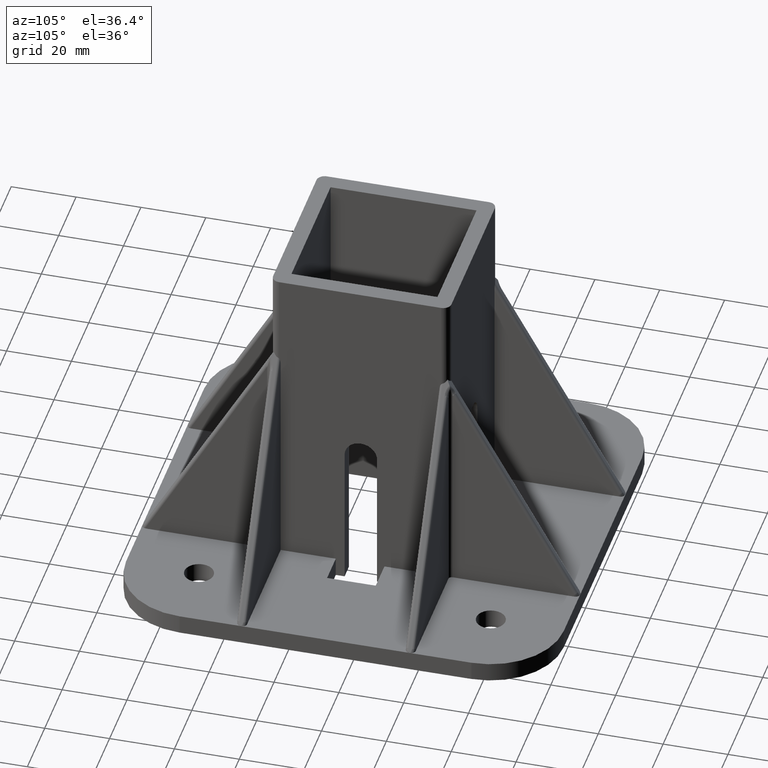
[diagram: clean part render]
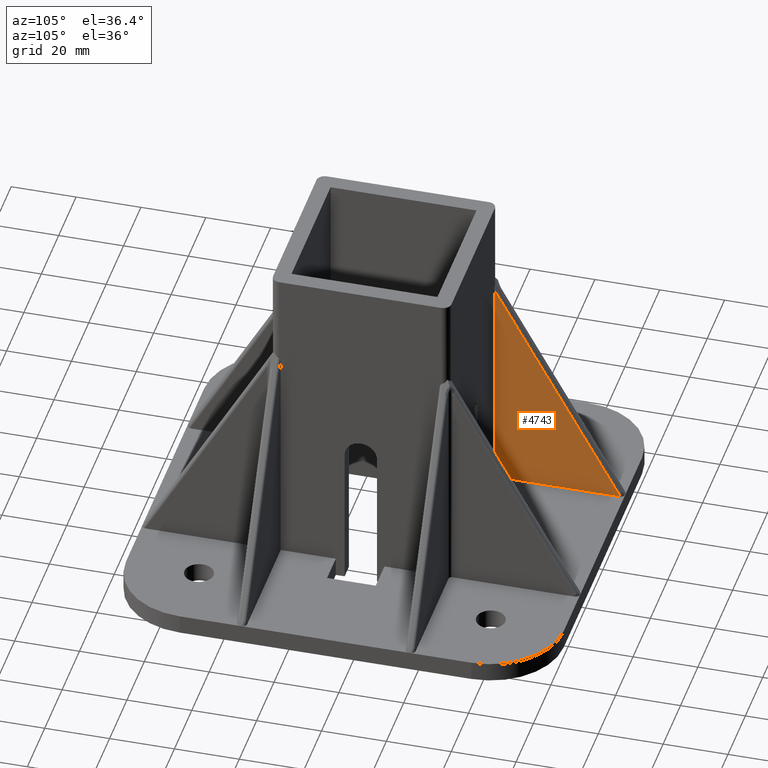
[diagram: same view with one face highlighted and labeled with its STEP entity id]
A machine part, auxiliary view. The second image highlights one B-rep face of the part: STEP entity #4743.
In plain terms, the highlighted planar face has unit normal (1, 0, 0).
Its self-contained STEP definition (entity closure, byte-faithful):
#3836=CARTESIAN_POINT('',(-24.499950999902097,-39.999919999840131,74.962537730874999));
#3837=VERTEX_POINT('',#3836);
#3838=CARTESIAN_POINT('',(-24.499950999902097,-1.499996999993982,6.625174599270139));
#3839=VERTEX_POINT('',#3838);
#3840=CARTESIAN_POINT('',(-24.499950999902097,-39.999919999840131,74.962537730874999));
#3841=DIRECTION('',(0.0,0.490843734993708,-0.871247627151677));
#3842=VECTOR('',#3841,78.436211476427829);
#3843=LINE('',#3840,#3842);
#3844=EDGE_CURVE('',#3837,#3839,#3843,.T.);
#3920=CARTESIAN_POINT('',(-24.499950999902097,-39.999919999840131,5.999987999976383));
#3921=VERTEX_POINT('',#3920);
#3928=CARTESIAN_POINT('',(-24.499950999902097,-39.999919999840131,5.999987999976383));
#3929=DIRECTION('',(0.0,0.0,1.0));
#3930=VECTOR('',#3929,68.962549730898616);
#3931=LINE('',#3928,#3930);
#3932=EDGE_CURVE('',#3921,#3837,#3931,.T.);
#4694=CARTESIAN_POINT('',(-24.499950999902069,-1.499996999993982,5.999987999976383));
#4695=VERTEX_POINT('',#4694);
#4718=CARTESIAN_POINT('',(-24.499950999902069,-1.499996999993982,5.999987999976383));
#4719=DIRECTION('',(0.0,0.0,1.0));
#4720=VECTOR('',#4719,0.625186599293755);
#4721=LINE('',#4718,#4720);
#4722=EDGE_CURVE('',#4695,#3839,#4721,.T.);
#4727=CARTESIAN_POINT('',(-24.499950999902097,-42.999913999828095,5.999987999976383));
#4728=DIRECTION('',(1.0,0.0,0.0));
#4729=DIRECTION('',(0.0,1.0,0.0));
#4730=AXIS2_PLACEMENT_3D('',#4727,#4728,#4729);
#4731=PLANE('',#4730);
#4732=CARTESIAN_POINT('',(-24.499950999902097,-39.999919999840131,5.999987999976383));
#4733=DIRECTION('',(0.0,1.0,0.0));
#4734=VECTOR('',#4733,38.499922999846149);
#4735=LINE('',#4732,#4734);
#4736=EDGE_CURVE('',#3921,#4695,#4735,.T.);
#4737=ORIENTED_EDGE('',*,*,#4736,.T.);
#4738=ORIENTED_EDGE('',*,*,#4722,.T.);
#4739=ORIENTED_EDGE('',*,*,#3844,.F.);
#4740=ORIENTED_EDGE('',*,*,#3932,.F.);
#4741=EDGE_LOOP('',(#4737,#4738,#4739,#4740));
#4742=FACE_OUTER_BOUND('',#4741,.T.);
#4743=ADVANCED_FACE('',(#4742),#4731,.T.);